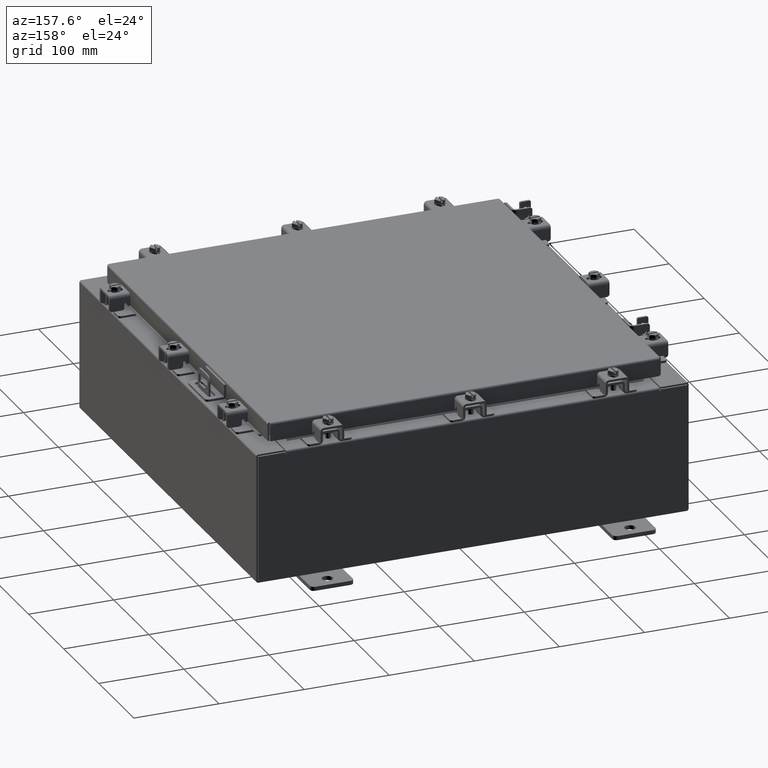
[diagram: clean part render]
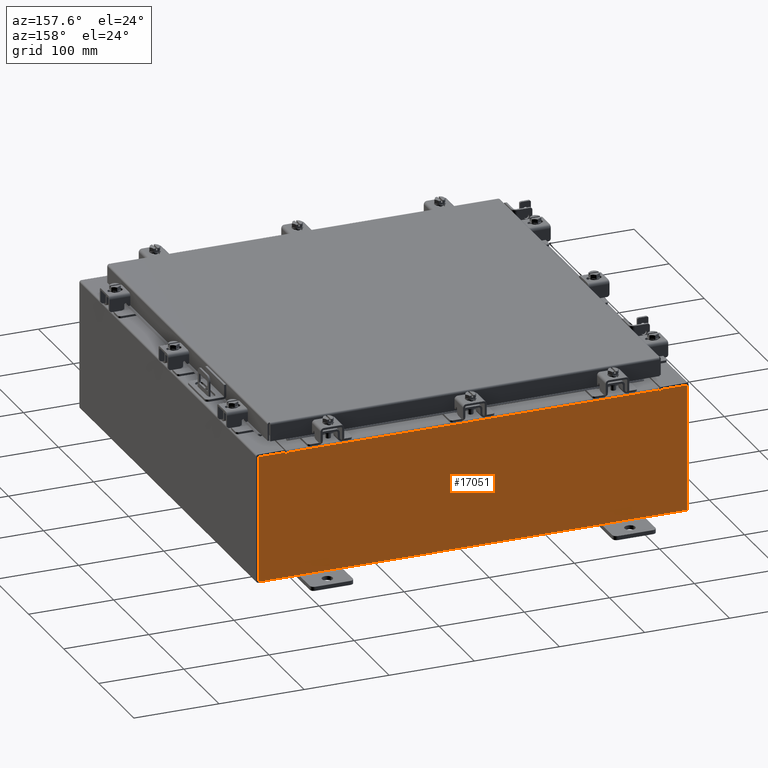
[diagram: same view with one face highlighted and labeled with its STEP entity id]
A machine part, auxiliary view. The second image highlights one B-rep face of the part: STEP entity #17051.
In plain terms, the highlighted planar face has unit normal (0, -1, 0).
Its self-contained STEP definition (entity closure, byte-faithful):
#173 = VECTOR ( 'NONE', #20046, 39.37007874015748100 ) ;
#206 = LINE ( 'NONE', #1131, #21785 ) ;
#322 = CARTESIAN_POINT ( 'NONE',  ( -9.925300000000000000, 0.0000000000000000000, 2.925300000000000500 ) ) ;
#504 = CARTESIAN_POINT ( 'NONE',  ( 8.637200000000000000, 0.0000000000000000000, 0.0000000000000000000 ) ) ;
#554 = EDGE_CURVE ( 'NONE', #19626, #11369, #206, .T. ) ;
#745 = CARTESIAN_POINT ( 'NONE',  ( -9.925300000000000000, 0.0000000000000000000, -2.925299999999999600 ) ) ;
#849 = EDGE_CURVE ( 'NONE', #4371, #19626, #13887, .T. ) ;
#1032 = CARTESIAN_POINT ( 'NONE',  ( 8.674550000000000000, 0.0000000000000000000, 2.874950000000000600 ) ) ;
#1066 = VECTOR ( 'NONE', #4920, 39.37007874015748100 ) ;
#1131 = CARTESIAN_POINT ( 'NONE',  ( -8.674549999999996400, -0.0000000000000000000, 0.0000000000000000000 ) ) ;
#1528 = CARTESIAN_POINT ( 'NONE',  ( 9.925300000000000000, 0.0000000000000000000, 2.925300000000000500 ) ) ;
#1732 = AXIS2_PLACEMENT_3D ( 'NONE', #12671, #16209, #5683 ) ;
#1883 = ORIENTED_EDGE ( 'NONE', *, *, #849, .F. ) ;
#2010 = DIRECTION ( 'NONE',  ( 1.000000000000000000, 0.0000000000000000000, 0.0000000000000000000 ) ) ;
#2468 = ORIENTED_EDGE ( 'NONE', *, *, #11515, .T. ) ;
#2785 = LINE ( 'NONE', #9764, #11528 ) ;
#2952 = EDGE_LOOP ( 'NONE', ( #4045, #1883, #5494, #22297, #19888, #20623, #20950, #19169, #6673, #2468, #14074, #10862 ) ) ;
#3801 = EDGE_CURVE ( 'NONE', #8481, #15038, #2785, .T. ) ;
#3921 = DIRECTION ( 'NONE',  ( 0.0000000000000000000, 0.0000000000000000000, -1.000000000000000000 ) ) ;
#4045 = ORIENTED_EDGE ( 'NONE', *, *, #554, .F. ) ;
#4133 = LINE ( 'NONE', #7375, #13483 ) ;
#4371 = VERTEX_POINT ( 'NONE', #15035 ) ;
#4382 = EDGE_CURVE ( 'NONE', #19019, #11369, #17294, .T. ) ;
#4734 = LINE ( 'NONE', #745, #18177 ) ;
#4920 = DIRECTION ( 'NONE',  ( 1.000000000000000000, 0.0000000000000000000, 0.0000000000000000000 ) ) ;
#5261 = VERTEX_POINT ( 'NONE', #11310 ) ;
#5352 = LINE ( 'NONE', #7579, #18804 ) ;
#5494 = ORIENTED_EDGE ( 'NONE', *, *, #22582, .F. ) ;
#5671 = DIRECTION ( 'NONE',  ( 0.0000000000000000000, 0.0000000000000000000, 1.000000000000000000 ) ) ;
#5683 = DIRECTION ( 'NONE',  ( 0.0000000000000000000, -0.0000000000000000000, -1.000000000000000000 ) ) ;
#5779 = CARTESIAN_POINT ( 'NONE',  ( 8.674550000000001800, 0.0000000000000000000, 2.925300000000000500 ) ) ;
#6109 = CIRCLE ( 'NONE', #9059, 0.01867500000000003900 ) ;
#6229 = LINE ( 'NONE', #17196, #1066 ) ;
#6673 = ORIENTED_EDGE ( 'NONE', *, *, #12780, .T. ) ;
#7222 = AXIS2_PLACEMENT_3D ( 'NONE', #11186, #15428, #21865 ) ;
#7351 = VERTEX_POINT ( 'NONE', #7862 ) ;
#7375 = CARTESIAN_POINT ( 'NONE',  ( 9.925300000000000000, 0.0000000000000000000, 2.925300000000000500 ) ) ;
#7579 = CARTESIAN_POINT ( 'NONE',  ( -9.925300000000000000, 0.0000000000000000000, 2.925300000000000500 ) ) ;
#7862 = CARTESIAN_POINT ( 'NONE',  ( 8.637200000000000000, 0.0000000000000000000, 2.874950000000000600 ) ) ;
#7878 = DIRECTION ( 'NONE',  ( -6.510859170600007400E-014, 0.0000000000000000000, -1.000000000000000000 ) ) ;
#7921 = VERTEX_POINT ( 'NONE', #21295 ) ;
#8100 = LINE ( 'NONE', #14272, #21496 ) ;
#8481 = VERTEX_POINT ( 'NONE', #5779 ) ;
#8698 = CARTESIAN_POINT ( 'NONE',  ( 8.655875000000000000, 0.0000000000000000000, 2.874950000000000600 ) ) ;
#9059 = AXIS2_PLACEMENT_3D ( 'NONE', #8698, #20907, #10430 ) ;
#9125 = PLANE ( 'NONE',  #1732 ) ;
#9336 = DIRECTION ( 'NONE',  ( -0.0000000000000000000, -0.0000000000000000000, 1.000000000000000000 ) ) ;
#9764 = CARTESIAN_POINT ( 'NONE',  ( 8.674549999999813500, -0.0000000000000000000, -5.647877341832707700E-013 ) ) ;
#9870 = FACE_OUTER_BOUND ( 'NONE', #2952, .T. ) ;
#10430 = DIRECTION ( 'NONE',  ( 0.0000000000000000000, 0.0000000000000000000, -1.000000000000000000 ) ) ;
#10737 = CARTESIAN_POINT ( 'NONE',  ( -8.674549999999996400, 0.0000000000000000000, 2.925300000000000500 ) ) ;
#10862 = ORIENTED_EDGE ( 'NONE', *, *, #4382, .T. ) ;
#11040 = EDGE_CURVE ( 'NONE', #7351, #20253, #18200, .T. ) ;
#11186 = CARTESIAN_POINT ( 'NONE',  ( -8.655874999999996400, 0.0000000000000000000, 2.874950000000000600 ) ) ;
#11231 = EDGE_CURVE ( 'NONE', #15038, #7351, #6109, .T. ) ;
#11299 = CARTESIAN_POINT ( 'NONE',  ( -8.637199999999996400, -0.0000000000000000000, 0.0000000000000000000 ) ) ;
#11310 = CARTESIAN_POINT ( 'NONE',  ( -9.925300000000000000, 0.0000000000000000000, -2.925299999999999600 ) ) ;
#11369 = VERTEX_POINT ( 'NONE', #10737 ) ;
#11515 = EDGE_CURVE ( 'NONE', #7921, #5261, #4734, .T. ) ;
#11528 = VECTOR ( 'NONE', #7878, 39.37007874015748100 ) ;
#12071 = VECTOR ( 'NONE', #13861, 39.37007874015748100 ) ;
#12671 = CARTESIAN_POINT ( 'NONE',  ( 0.0000000000000000000, 0.0000000000000000000, 0.0000000000000000000 ) ) ;
#12780 = EDGE_CURVE ( 'NONE', #13934, #7921, #4133, .T. ) ;
#13483 = VECTOR ( 'NONE', #3921, 39.37007874015748100 ) ;
#13555 = VECTOR ( 'NONE', #5671, 39.37007874015748100 ) ;
#13591 = LINE ( 'NONE', #11299, #173 ) ;
#13861 = DIRECTION ( 'NONE',  ( 1.000000000000000000, 0.0000000000000000000, 0.0000000000000000000 ) ) ;
#13887 = CIRCLE ( 'NONE', #7222, 0.01867500000000003900 ) ;
#13934 = VERTEX_POINT ( 'NONE', #1528 ) ;
#14074 = ORIENTED_EDGE ( 'NONE', *, *, #15689, .T. ) ;
#14272 = CARTESIAN_POINT ( 'NONE',  ( -8.637200000000000000, 1.024442997624098700E-016, 2.912300000000000600 ) ) ;
#14507 = EDGE_CURVE ( 'NONE', #8481, #13934, #6229, .T. ) ;
#14658 = CARTESIAN_POINT ( 'NONE',  ( -9.925300000000000000, 0.0000000000000000000, 2.925300000000000500 ) ) ;
#15035 = CARTESIAN_POINT ( 'NONE',  ( -8.637199999999996400, -0.0000000000000000000, 2.874950000000000600 ) ) ;
#15038 = VERTEX_POINT ( 'NONE', #1032 ) ;
#15428 = DIRECTION ( 'NONE',  ( -0.0000000000000000000, 1.000000000000000000, -0.0000000000000000000 ) ) ;
#15540 = CARTESIAN_POINT ( 'NONE',  ( 8.637200000000000000, 0.0000000000000000000, 2.912300000000000600 ) ) ;
#15689 = EDGE_CURVE ( 'NONE', #5261, #19019, #5352, .T. ) ;
#16094 = CARTESIAN_POINT ( 'NONE',  ( -8.674549999999996400, 0.0000000000000000000, 2.874950000000000600 ) ) ;
#16209 = DIRECTION ( 'NONE',  ( 0.0000000000000000000, -1.000000000000000000, 0.0000000000000000000 ) ) ;
#17051 = ADVANCED_FACE ( 'NONE', ( #9870 ), #9125, .F. ) ;
#17196 = CARTESIAN_POINT ( 'NONE',  ( -9.925300000000000000, 0.0000000000000000000, 2.925300000000000500 ) ) ;
#17294 = LINE ( 'NONE', #14658, #12071 ) ;
#17320 = CARTESIAN_POINT ( 'NONE',  ( -8.637199999999996400, 1.024442997624098700E-016, 2.912300000000000600 ) ) ;
#18177 = VECTOR ( 'NONE', #18181, 39.37007874015748100 ) ;
#18181 = DIRECTION ( 'NONE',  ( -1.000000000000000000, -0.0000000000000000000, -0.0000000000000000000 ) ) ;
#18200 = LINE ( 'NONE', #504, #13555 ) ;
#18804 = VECTOR ( 'NONE', #9336, 39.37007874015748100 ) ;
#19019 = VERTEX_POINT ( 'NONE', #322 ) ;
#19169 = ORIENTED_EDGE ( 'NONE', *, *, #14507, .T. ) ;
#19626 = VERTEX_POINT ( 'NONE', #16094 ) ;
#19888 = ORIENTED_EDGE ( 'NONE', *, *, #11040, .F. ) ;
#20046 = DIRECTION ( 'NONE',  ( 0.0000000000000000000, 0.0000000000000000000, -1.000000000000000000 ) ) ;
#20253 = VERTEX_POINT ( 'NONE', #15540 ) ;
#20623 = ORIENTED_EDGE ( 'NONE', *, *, #11231, .F. ) ;
#20907 = DIRECTION ( 'NONE',  ( -0.0000000000000000000, 1.000000000000000000, -0.0000000000000000000 ) ) ;
#20950 = ORIENTED_EDGE ( 'NONE', *, *, #3801, .F. ) ;
#21234 = DIRECTION ( 'NONE',  ( 0.0000000000000000000, 0.0000000000000000000, 1.000000000000000000 ) ) ;
#21295 = CARTESIAN_POINT ( 'NONE',  ( 9.925300000000000000, 0.0000000000000000000, -2.925299999999999600 ) ) ;
#21496 = VECTOR ( 'NONE', #2010, 39.37007874015748100 ) ;
#21785 = VECTOR ( 'NONE', #21234, 39.37007874015748100 ) ;
#21865 = DIRECTION ( 'NONE',  ( 0.0000000000000000000, 0.0000000000000000000, -1.000000000000000000 ) ) ;
#22203 = VERTEX_POINT ( 'NONE', #17320 ) ;
#22297 = ORIENTED_EDGE ( 'NONE', *, *, #22322, .T. ) ;
#22322 = EDGE_CURVE ( 'NONE', #22203, #20253, #8100, .T. ) ;
#22582 = EDGE_CURVE ( 'NONE', #22203, #4371, #13591, .T. ) ;